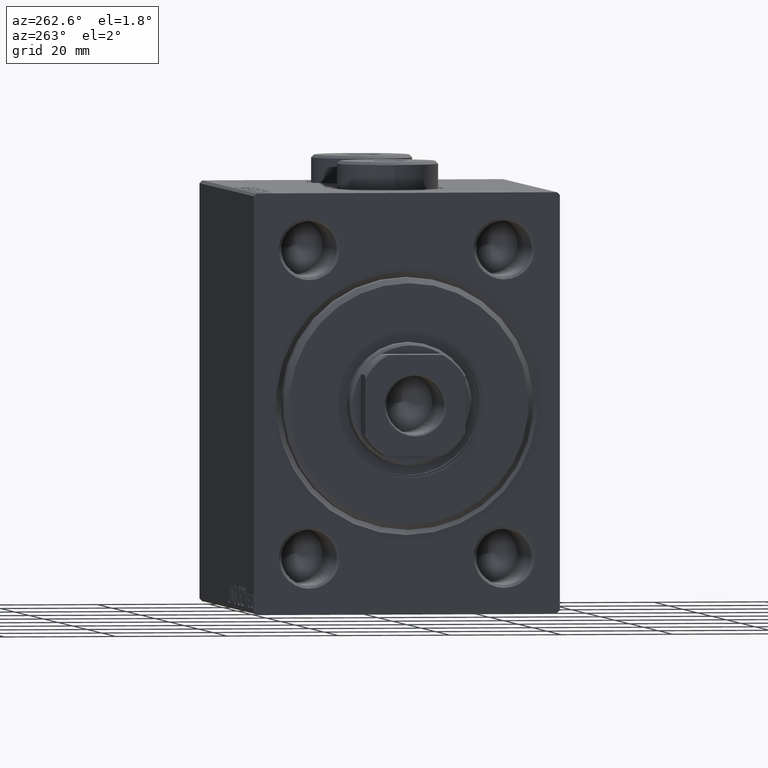
[diagram: clean part render]
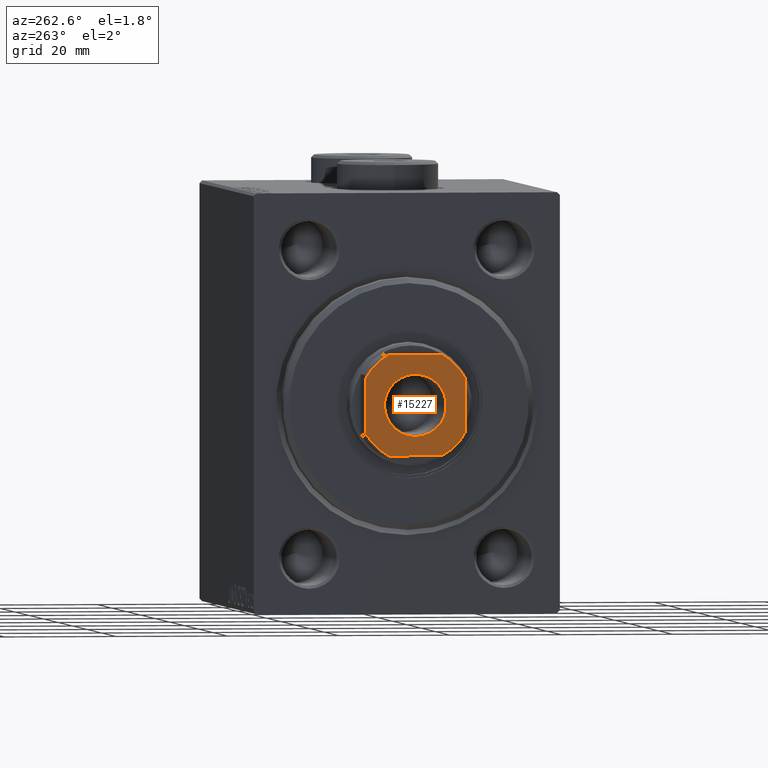
[diagram: same view with one face highlighted and labeled with its STEP entity id]
A machine part, auxiliary view. The second image highlights one B-rep face of the part: STEP entity #15227.
In plain terms, the highlighted planar face has unit normal (-1, 0, 0).
Its self-contained STEP definition (entity closure, byte-faithful):
#43 = CARTESIAN_POINT ( 'NONE',  ( 0.000000000000000000, 0.000000000000000000, 77.00000000000001421 ) ) ;
#62 = DIRECTION ( 'NONE',  ( -1.927470528863119049E-16, 1.000000000000000000, -0.000000000000000000 ) ) ;
#101 = CARTESIAN_POINT ( 'NONE',  ( -9.000000000000001776, 4.799999999999986500, 77.00000000000001421 ) ) ;
#1181 = EDGE_CURVE ( 'NONE', #31347, #43617, #8073, .T. ) ;
#1954 = DIRECTION ( 'NONE',  ( 1.000000000000000000, 0.000000000000000000, 0.000000000000000000 ) ) ;
#2053 = EDGE_CURVE ( 'NONE', #4653, #38992, #5176, .T. ) ;
#2178 = EDGE_LOOP ( 'NONE', ( #40747, #13396 ) ) ;
#2504 = FACE_OUTER_BOUND ( 'NONE', #31158, .T. ) ;
#4438 = EDGE_CURVE ( 'NONE', #28830, #4546, #8799, .T. ) ;
#4546 = VERTEX_POINT ( 'NONE', #6135 ) ;
#4653 = VERTEX_POINT ( 'NONE', #19293 ) ;
#5174 = VERTEX_POINT ( 'NONE', #15278 ) ;
#5176 = CIRCLE ( 'NONE', #21331, 10.19999999999999396 ) ;
#6135 = CARTESIAN_POINT ( 'NONE',  ( 9.000000000000001776, -4.800000000000007816, 77.00000000000001421 ) ) ;
#8073 = CIRCLE ( 'NONE', #18339, 10.20000000000000462 ) ;
#8372 = CARTESIAN_POINT ( 'NONE',  ( 0.000000000000000000, 0.000000000000000000, 77.00000000000001421 ) ) ;
#8660 = LINE ( 'NONE', #26140, #19846 ) ;
#8799 = CIRCLE ( 'NONE', #36739, 10.20000000000000462 ) ;
#9163 = DIRECTION ( 'NONE',  ( -0.000000000000000000, 0.000000000000000000, 1.000000000000000000 ) ) ;
#9520 = VECTOR ( 'NONE', #62, 1000.000000000000000 ) ;
#10037 = ORIENTED_EDGE ( 'NONE', *, *, #30532, .T. ) ;
#10124 = CARTESIAN_POINT ( 'NONE',  ( 0.000000000000000000, 0.000000000000000000, 77.00000000000001421 ) ) ;
#10464 = CARTESIAN_POINT ( 'NONE',  ( 4.800000000000012257, 8.999999999999998224, 77.00000000000001421 ) ) ;
#10614 = CIRCLE ( 'NONE', #32665, 5.550000000000013145 ) ;
#10652 = DIRECTION ( 'NONE',  ( -0.000000000000000000, 0.000000000000000000, 1.000000000000000000 ) ) ;
#10677 = CARTESIAN_POINT ( 'NONE',  ( -9.000000000000001776, 8.999999999999998224, 77.00000000000001421 ) ) ;
#10928 = VERTEX_POINT ( 'NONE', #23680 ) ;
#11167 = EDGE_CURVE ( 'NONE', #10928, #32861, #10614, .T. ) ;
#12206 = DIRECTION ( 'NONE',  ( -0.000000000000000000, 0.000000000000000000, 1.000000000000000000 ) ) ;
#13071 = ORIENTED_EDGE ( 'NONE', *, *, #4438, .T. ) ;
#13396 = ORIENTED_EDGE ( 'NONE', *, *, #11167, .T. ) ;
#14928 = DIRECTION ( 'NONE',  ( 0.000000000000000000, -0.000000000000000000, -1.000000000000000000 ) ) ;
#15227 = ADVANCED_FACE ( 'NONE', ( #40769, #2504 ), #26688, .T. ) ;
#15278 = CARTESIAN_POINT ( 'NONE',  ( -8.999999999999998224, -4.799999999999999822, 77.00000000000001421 ) ) ;
#16204 = CARTESIAN_POINT ( 'NONE',  ( -9.000000000000001776, 8.999999999999998224, 77.00000000000001421 ) ) ;
#16591 = AXIS2_PLACEMENT_3D ( 'NONE', #30366, #12206, #30586 ) ;
#17610 = CIRCLE ( 'NONE', #27885, 10.19999999999999929 ) ;
#17907 = VERTEX_POINT ( 'NONE', #18567 ) ;
#18339 = AXIS2_PLACEMENT_3D ( 'NONE', #39823, #9163, #23188 ) ;
#18437 = EDGE_CURVE ( 'NONE', #32861, #10928, #20355, .T. ) ;
#18567 = CARTESIAN_POINT ( 'NONE',  ( -4.799999999999995381, -9.000000000000001776, 77.00000000000001421 ) ) ;
#19293 = CARTESIAN_POINT ( 'NONE',  ( -4.799999999999990941, 8.999999999999998224, 77.00000000000001421 ) ) ;
#19846 = VECTOR ( 'NONE', #1954, 1000.000000000000000 ) ;
#20355 = CIRCLE ( 'NONE', #21808, 5.550000000000013145 ) ;
#20856 = CARTESIAN_POINT ( 'NONE',  ( 5.550000000000013145, 0.000000000000000000, 77.00000000000001421 ) ) ;
#21010 = CARTESIAN_POINT ( 'NONE',  ( 8.999999999999998224, 8.999999999999998224, 77.00000000000001421 ) ) ;
#21331 = AXIS2_PLACEMENT_3D ( 'NONE', #8372, #22393, #43846 ) ;
#21808 = AXIS2_PLACEMENT_3D ( 'NONE', #43, #41311, #38737 ) ;
#22393 = DIRECTION ( 'NONE',  ( -0.000000000000000000, 0.000000000000000000, 1.000000000000000000 ) ) ;
#22772 = CARTESIAN_POINT ( 'NONE',  ( 4.800000000000006928, -9.000000000000001776, 77.00000000000001421 ) ) ;
#23188 = DIRECTION ( 'NONE',  ( 1.000000000000000000, 0.000000000000000000, 0.000000000000000000 ) ) ;
#23680 = CARTESIAN_POINT ( 'NONE',  ( -5.550000000000013145, 6.796789735267826558E-16, 77.00000000000001421 ) ) ;
#24082 = ORIENTED_EDGE ( 'NONE', *, *, #2053, .T. ) ;
#24444 = DIRECTION ( 'NONE',  ( 1.000000000000000000, 0.000000000000000000, 0.000000000000000000 ) ) ;
#25298 = ORIENTED_EDGE ( 'NONE', *, *, #1181, .T. ) ;
#26140 = CARTESIAN_POINT ( 'NONE',  ( -8.999999999999998224, -9.000000000000001776, 77.00000000000001421 ) ) ;
#26688 = PLANE ( 'NONE',  #16591 ) ;
#27223 = DIRECTION ( 'NONE',  ( -1.000000000000000000, -0.000000000000000000, -0.000000000000000000 ) ) ;
#27385 = DIRECTION ( 'NONE',  ( 1.000000000000000000, 0.000000000000000000, 0.000000000000000000 ) ) ;
#27885 = AXIS2_PLACEMENT_3D ( 'NONE', #42216, #10652, #24444 ) ;
#28830 = VERTEX_POINT ( 'NONE', #22772 ) ;
#29630 = EDGE_CURVE ( 'NONE', #4546, #31347, #31602, .T. ) ;
#30366 = CARTESIAN_POINT ( 'NONE',  ( 0.000000000000000000, 0.000000000000000000, 77.00000000000001421 ) ) ;
#30532 = EDGE_CURVE ( 'NONE', #38992, #5174, #31613, .T. ) ;
#30586 = DIRECTION ( 'NONE',  ( 1.000000000000000000, 0.000000000000000000, 0.000000000000000000 ) ) ;
#30833 = VECTOR ( 'NONE', #42705, 1000.000000000000000 ) ;
#31158 = EDGE_LOOP ( 'NONE', ( #43786, #25298, #31640, #24082, #10037, #38528, #40713, #13071 ) ) ;
#31347 = VERTEX_POINT ( 'NONE', #39455 ) ;
#31602 = LINE ( 'NONE', #21010, #9520 ) ;
#31613 = LINE ( 'NONE', #10677, #30833 ) ;
#31640 = ORIENTED_EDGE ( 'NONE', *, *, #36236, .T. ) ;
#32665 = AXIS2_PLACEMENT_3D ( 'NONE', #43268, #14928, #39347 ) ;
#32861 = VERTEX_POINT ( 'NONE', #20856 ) ;
#36190 = VECTOR ( 'NONE', #27223, 1000.000000000000000 ) ;
#36236 = EDGE_CURVE ( 'NONE', #43617, #4653, #37833, .T. ) ;
#36739 = AXIS2_PLACEMENT_3D ( 'NONE', #10124, #44928, #27385 ) ;
#37833 = LINE ( 'NONE', #16204, #36190 ) ;
#38528 = ORIENTED_EDGE ( 'NONE', *, *, #40988, .T. ) ;
#38737 = DIRECTION ( 'NONE',  ( 1.000000000000000000, 0.000000000000000000, 0.000000000000000000 ) ) ;
#38992 = VERTEX_POINT ( 'NONE', #101 ) ;
#39347 = DIRECTION ( 'NONE',  ( 1.000000000000000000, 0.000000000000000000, 0.000000000000000000 ) ) ;
#39455 = CARTESIAN_POINT ( 'NONE',  ( 8.999999999999998224, 4.800000000000010481, 77.00000000000001421 ) ) ;
#39823 = CARTESIAN_POINT ( 'NONE',  ( 0.000000000000000000, 0.000000000000000000, 77.00000000000001421 ) ) ;
#40713 = ORIENTED_EDGE ( 'NONE', *, *, #45540, .T. ) ;
#40747 = ORIENTED_EDGE ( 'NONE', *, *, #18437, .T. ) ;
#40769 = FACE_BOUND ( 'NONE', #2178, .T. ) ;
#40988 = EDGE_CURVE ( 'NONE', #5174, #17907, #17610, .T. ) ;
#41311 = DIRECTION ( 'NONE',  ( 0.000000000000000000, -0.000000000000000000, -1.000000000000000000 ) ) ;
#42216 = CARTESIAN_POINT ( 'NONE',  ( 0.000000000000000000, 0.000000000000000000, 77.00000000000001421 ) ) ;
#42705 = DIRECTION ( 'NONE',  ( 1.927470528863119049E-16, -1.000000000000000000, 0.000000000000000000 ) ) ;
#43268 = CARTESIAN_POINT ( 'NONE',  ( 0.000000000000000000, 0.000000000000000000, 77.00000000000001421 ) ) ;
#43617 = VERTEX_POINT ( 'NONE', #10464 ) ;
#43786 = ORIENTED_EDGE ( 'NONE', *, *, #29630, .T. ) ;
#43846 = DIRECTION ( 'NONE',  ( 1.000000000000000000, 0.000000000000000000, 0.000000000000000000 ) ) ;
#44928 = DIRECTION ( 'NONE',  ( -0.000000000000000000, 0.000000000000000000, 1.000000000000000000 ) ) ;
#45540 = EDGE_CURVE ( 'NONE', #17907, #28830, #8660, .T. ) ;